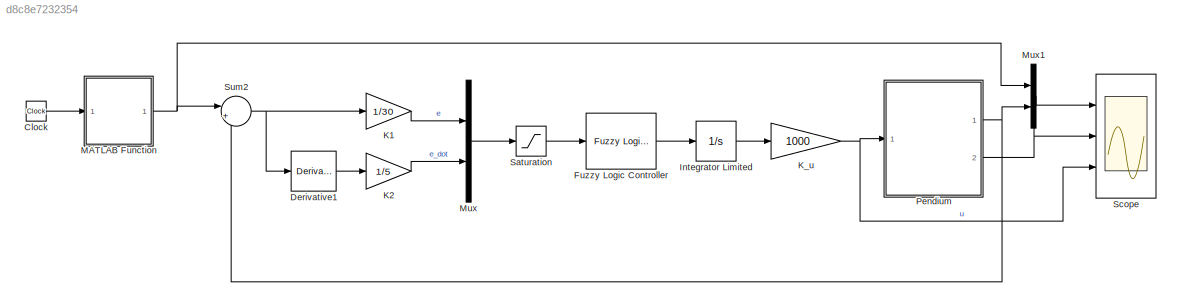
MODEL slx_d8c8e7232354
KIND model
CONFIG AbsTol = auto
CONFIG EnableMultiTasking = off
CONFIG FixedStep = 0.1
CONFIG MaxStep = auto
CONFIG MinStep = auto
CONFIG RelTol = 1e-3
CONFIG SampleTimeConstraint = Unconstrained
CONFIG Solver = ode5
CONFIG SolverName = ode5
CONFIG StartTime = 0.0
CONFIG StopTime = 800
BLOCK [Clock] Clock
  Decimation = 800
BLOCK [Derivative] Derivative1
BLOCK [Reference] Fuzzy Logic Controller  REF=fuzblock/Fuzzy Logic   (lib defined in mdl_858b3b3e7478)
Controller
  Ports = [1, 1]
  SourceBlock = fuzblock/Fuzzy Logic \nController
  SourceProductBaseCode = FL
  SourceProductName = Fuzzy Logic Toolbox
  SourceType = Fuzzy Inference System
BLOCK [Integrator] Integrator Limited
  LimitOutput = on
  LowerSaturationLimit = -1
  Ports = [1, 1]
  UpperSaturationLimit = 1
BLOCK [Gain] K1
  Gain = 1/30
  OutDataTypeStr = Inherit: Inherit via internal rule
  ParamDataTypeStr = Inherit: Inherit via internal rule
  SaturateOnIntegerOverflow = off
BLOCK [Gain] K2
  Gain = 1/5
  OutDataTypeStr = Inherit: Inherit via internal rule
  ParamDataTypeStr = Inherit: Inherit via internal rule
  SaturateOnIntegerOverflow = off
BLOCK [Gain] K_u
  Gain = 1000
  OutDataTypeStr = Inherit: Inherit via internal rule
  ParamDataTypeStr = Inherit: Inherit via internal rule
  SaturateOnIntegerOverflow = off
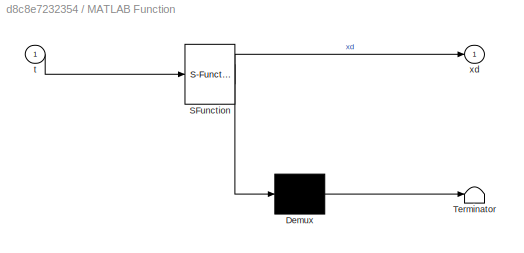
BLOCK [SubSystem] MATLAB Function
  ErrorFcn = Stateflow.Translate.translate
  PermitHierarchicalResolution = ExplicitOnly
  Ports = [1, 1]
  RequestExecContextInheritance = off
  SFBlockType = MATLAB Function
  TreatAsAtomicUnit = on
  Variant = off
BLOCK [Demux] MATLAB Function/ Demux 
  Outputs = 1
  Ports = [1, 1]
BLOCK [S-Function] MATLAB Function/ SFunction 
  EnableBusSupport = on
  FunctionName = sf_sfun
  PortCounts = [1 2]
  Ports = [1, 2]
  SFcnIsStateOwnerBlock = off
  SFunctionDeploymentMode = off
  Tag = Stateflow S-Function bai2 2
BLOCK [Terminator] MATLAB Function/ Terminator 
BLOCK [Inport] MATLAB Function/t
  IconDisplay = Port number
BLOCK [Outport] MATLAB Function/xd
  IconDisplay = Port number
BLOCK [Mux] Mux
  DisplayOption = bar
  Inputs = 2
  Ports = [2, 1]
BLOCK [Mux] Mux1
  DisplayOption = bar
  Inputs = 2
  Ports = [2, 1]
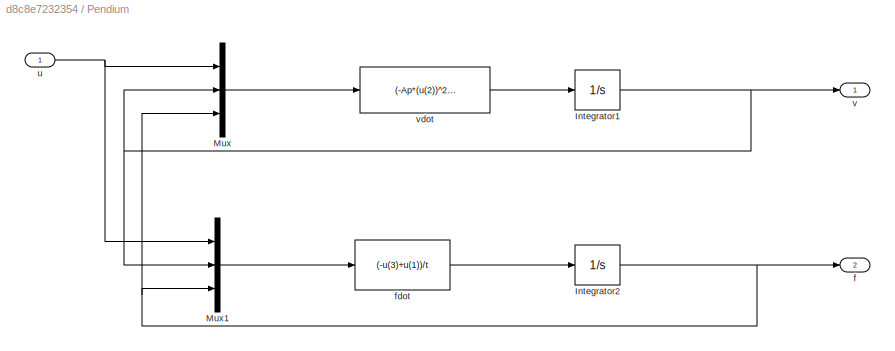
BLOCK [SubSystem] Pendium
  Ports = [1, 2]
  RequestExecContextInheritance = off
  Variant = off
BLOCK [Integrator] Pendium/Integrator1
  InitialCondition = v0
  Ports = [1, 1]
BLOCK [Integrator] Pendium/Integrator2
  InitialCondition = f0
  Ports = [1, 1]
BLOCK [Mux] Pendium/Mux
  DisplayOption = bar
  Inputs = 3
  Ports = [3, 1]
BLOCK [Mux] Pendium/Mux1
  DisplayOption = bar
  Inputs = 3
  Ports = [3, 1]
BLOCK [Outport] Pendium/f
  IconDisplay = Port number
  Port = 2
BLOCK [Fcn] Pendium/fdot
  Expr = (-u(3)+u(1))/t
BLOCK [Inport] Pendium/u
  IconDisplay = Port number
BLOCK [Outport] Pendium/v
  IconDisplay = Port number
BLOCK [Fcn] Pendium/vdot
  Expr = (-Ap*(u(2))^2-d+u(3))/m
BLOCK [Saturate] Saturation
  InputPortMap = u0
  LowerLimit = -1
  Ports = [1, 1]
  UpperLimit = 1
BLOCK [Scope] Scope
  NumInputPorts = 3
  Ports = [3]
  ScopeSpecificationString = Simulink.scopes.TimeScopeBlockCfg('CurrentConfiguration', extmgr.ConfigurationSet(extmgr.Configuration('Core','General UI',true,'FigureColor',[1 1 1]),extmgr.Configuration('Core','Source UI',true),extmgr.Configuration('Sources','WiredSimulink',true),extmgr.Configuration('Visuals','Time Domain',true,'SerializedDisplays',{struct('MinYLimReal','-3.76647','MaxYLimReal','33.75439','YLabelReal','','MinY...<+4569ch>
BLOCK [Sum] Sum2
  IconShape = round
  InputSameDT = off
  Inputs = |+-
  OutDataTypeStr = Inherit: Inherit via internal rule
  Ports = [2, 1]
  SaturateOnIntegerOverflow = off
LINE Clock:1 -> MATLAB Function:1
LINE Derivative1:1 -> K2:1
LINE Fuzzy Logic Controller:1 -> Integrator Limited:1
LINE Integrator Limited:1 -> K_u:1
LINE K1:1 -> Mux:1
LINE K2:1 -> Mux:2
NET K_u:1 -> Pendium:1, Scope:3
NET MATLAB Function:1 -> Mux1:1, Sum2:1
LINE Mux1:1 -> Scope:1
LINE Mux:1 -> Saturation:1
NET Pendium/Integrator1:1 -> Pendium/Mux1:2, Pendium/Mux:2, Pendium/v:1
NET Pendium/Integrator2:1 -> Pendium/Mux1:3, Pendium/Mux:3, Pendium/f:1
LINE Pendium/Mux1:1 -> Pendium/fdot:1
LINE Pendium/Mux:1 -> Pendium/vdot:1
LINE Pendium/fdot:1 -> Pendium/Integrator2:1
NET Pendium/u:1 -> Pendium/Mux1:1, Pendium/Mux:1
LINE Pendium/vdot:1 -> Pendium/Integrator1:1
NET Pendium:1 -> Mux1:2, Sum2:2
LINE Pendium:2 -> Scope:2
LINE Saturation:1 -> Fuzzy Logic Controller:1
NET Sum2:1 -> Derivative1:1, K1:1
note: NET lines group one-source signal fan-out (src -> all destinations, sorted); 1:1 wires keep LINE
CHART MATLAB Function states=1 transitions=1
  STATE_LABEL 'eML_blk_kernel()'
  STATE_LABEL 'SCRIPT:\nfunction xd = fcn(t)\nif (0<=t) && (t<100)  \n    xd = 30;\nelseif (100<=t) &&(t<200) \n    xd = 20;\nelseif (200<=t) &&(t<400)  \n    xd = 10;\nelseif (400<=t) &&(t<500)  \n    xd = 25;\nelseif (500<=t) &&(t<600)  \n    xd = 15;\nelseif (600<=t) &&(t<800)  \n    xd = 30;\nelse xd = 0;\nend\nend\n\n'
